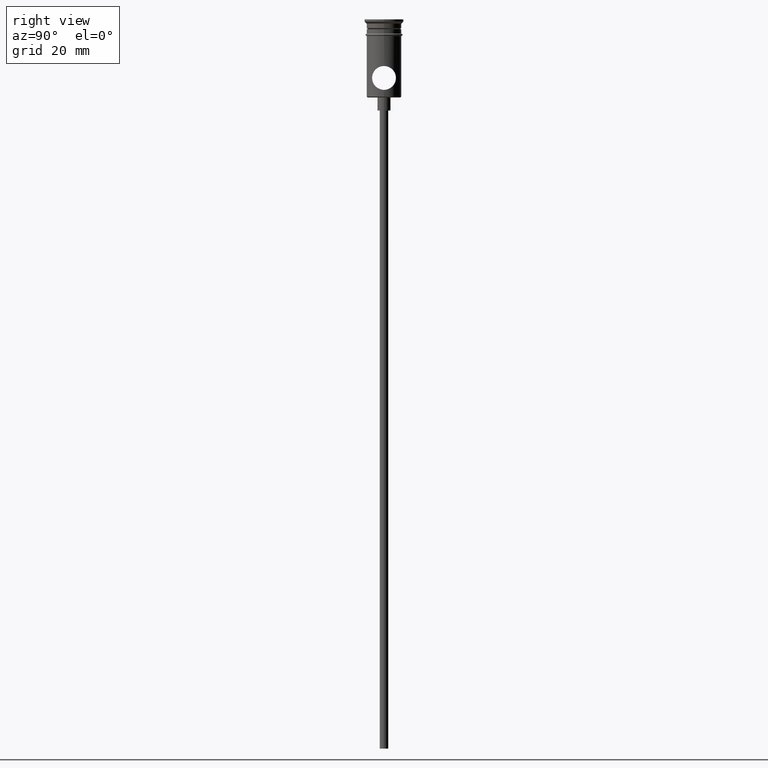
[diagram: clean part render]
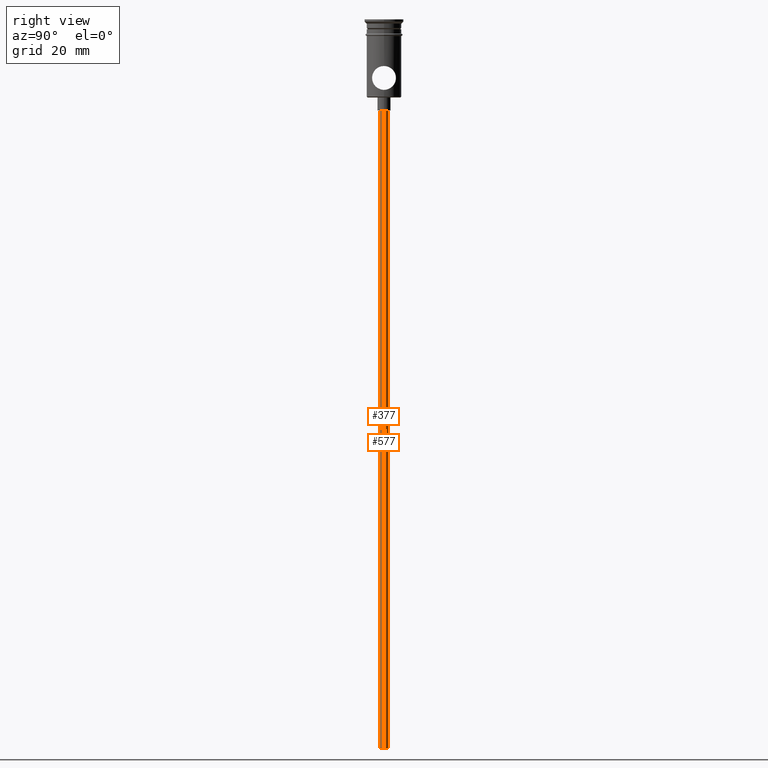
[diagram: same view with one multi-face feature highlighted, each face labeled with its STEP entity id]
A machine part, right view. The highlighted faces form ONE feature: a constant-radius fillet chain: 2 tangent blend faces with common blend radius 1 mm. The faces share edges in the B-rep.
Their STEP definitions:
[1] entity #377 (Cylinder):
#33 = EDGE_CURVE ( 'NONE', #778, #1228, #64, .T. ) ;
#52 = DIRECTION ( 'NONE',  ( -0.000000000000000000, -0.000000000000000000, 1.000000000000000000 ) ) ;
#54 = CARTESIAN_POINT ( 'NONE',  ( -0.9999999999999997780, 1.224646799147352961E-16, -20.99999999999999645 ) ) ;
#64 = CIRCLE ( 'NONE', #433, 0.9999999999999997780 ) ;
#90 = DIRECTION ( 'NONE',  ( 0.000000000000000000, 0.000000000000000000, -1.000000000000000000 ) ) ;
#150 = LINE ( 'NONE', #1379, #688 ) ;
#235 = AXIS2_PLACEMENT_3D ( 'NONE', #495, #385, #736 ) ;
#355 = ORIENTED_EDGE ( 'NONE', *, *, #715, .T. ) ;
#377 = ADVANCED_FACE ( 'NONE', ( #1258 ), #624, .T. ) ;
#378 = DIRECTION ( 'NONE',  ( -1.000000000000000000, 0.000000000000000000, 0.000000000000000000 ) ) ;
#385 = DIRECTION ( 'NONE',  ( -0.000000000000000000, -0.000000000000000000, 1.000000000000000000 ) ) ;
#428 = EDGE_CURVE ( 'NONE', #778, #1214, #1290, .T. ) ;
#433 = AXIS2_PLACEMENT_3D ( 'NONE', #516, #90, #1070 ) ;
#495 = CARTESIAN_POINT ( 'NONE',  ( 0.000000000000000000, 0.000000000000000000, -167.9999999999999716 ) ) ;
#496 = CARTESIAN_POINT ( 'NONE',  ( -0.9999999999999997780, 1.224646799147352961E-16, -167.9999999999999716 ) ) ;
#516 = CARTESIAN_POINT ( 'NONE',  ( 0.000000000000000000, 0.000000000000000000, -167.9999999999999716 ) ) ;
#526 = VECTOR ( 'NONE', #548, 1000.000000000000000 ) ;
#548 = DIRECTION ( 'NONE',  ( -0.000000000000000000, -0.000000000000000000, 1.000000000000000000 ) ) ;
#572 = CIRCLE ( 'NONE', #1373, 0.9999999999999997780 ) ;
#599 = EDGE_LOOP ( 'NONE', ( #1252, #1363, #934, #355 ) ) ;
#624 = CYLINDRICAL_SURFACE ( 'NONE', #235, 0.9999999999999997780 ) ;
#673 = EDGE_CURVE ( 'NONE', #1228, #994, #150, .T. ) ;
#688 = VECTOR ( 'NONE', #52, 1000.000000000000000 ) ;
#715 = EDGE_CURVE ( 'NONE', #1214, #994, #572, .T. ) ;
#736 = DIRECTION ( 'NONE',  ( 1.000000000000000000, 0.000000000000000000, 0.000000000000000000 ) ) ;
#778 = VERTEX_POINT ( 'NONE', #1406 ) ;
#924 = CARTESIAN_POINT ( 'NONE',  ( 0.000000000000000000, 0.000000000000000000, -20.99999999999999645 ) ) ;
#934 = ORIENTED_EDGE ( 'NONE', *, *, #428, .T. ) ;
#994 = VERTEX_POINT ( 'NONE', #54 ) ;
#1070 = DIRECTION ( 'NONE',  ( -1.000000000000000000, 0.000000000000000000, 0.000000000000000000 ) ) ;
#1214 = VERTEX_POINT ( 'NONE', #1267 ) ;
#1228 = VERTEX_POINT ( 'NONE', #496 ) ;
#1252 = ORIENTED_EDGE ( 'NONE', *, *, #673, .F. ) ;
#1258 = FACE_OUTER_BOUND ( 'NONE', #599, .T. ) ;
#1267 = CARTESIAN_POINT ( 'NONE',  ( 0.9999999999999997780, 0.000000000000000000, -20.99999999999999645 ) ) ;
#1290 = LINE ( 'NONE', #1308, #526 ) ;
#1308 = CARTESIAN_POINT ( 'NONE',  ( 0.9999999999999997780, 0.000000000000000000, -167.9999999999999716 ) ) ;
#1354 = DIRECTION ( 'NONE',  ( 0.000000000000000000, 0.000000000000000000, -1.000000000000000000 ) ) ;
#1363 = ORIENTED_EDGE ( 'NONE', *, *, #33, .F. ) ;
#1373 = AXIS2_PLACEMENT_3D ( 'NONE', #924, #1354, #378 ) ;
#1379 = CARTESIAN_POINT ( 'NONE',  ( -0.9999999999999997780, 1.224646799147352961E-16, -167.9999999999999716 ) ) ;
#1406 = CARTESIAN_POINT ( 'NONE',  ( 0.9999999999999997780, 0.000000000000000000, -167.9999999999999716 ) ) ;
[2] entity #577 (Cylinder):
#52 = DIRECTION ( 'NONE',  ( -0.000000000000000000, -0.000000000000000000, 1.000000000000000000 ) ) ;
#54 = CARTESIAN_POINT ( 'NONE',  ( -0.9999999999999997780, 1.224646799147352961E-16, -20.99999999999999645 ) ) ;
#71 = EDGE_CURVE ( 'NONE', #1228, #778, #1030, .T. ) ;
#130 = CARTESIAN_POINT ( 'NONE',  ( 0.000000000000000000, 0.000000000000000000, -167.9999999999999716 ) ) ;
#150 = LINE ( 'NONE', #1379, #688 ) ;
#253 = CYLINDRICAL_SURFACE ( 'NONE', #528, 0.9999999999999997780 ) ;
#254 = DIRECTION ( 'NONE',  ( 0.000000000000000000, 0.000000000000000000, -1.000000000000000000 ) ) ;
#310 = EDGE_CURVE ( 'NONE', #994, #1214, #498, .T. ) ;
#325 = EDGE_LOOP ( 'NONE', ( #598, #471, #1017, #477 ) ) ;
#397 = DIRECTION ( 'NONE',  ( -1.000000000000000000, 0.000000000000000000, 0.000000000000000000 ) ) ;
#428 = EDGE_CURVE ( 'NONE', #778, #1214, #1290, .T. ) ;
#471 = ORIENTED_EDGE ( 'NONE', *, *, #673, .T. ) ;
#477 = ORIENTED_EDGE ( 'NONE', *, *, #428, .F. ) ;
#496 = CARTESIAN_POINT ( 'NONE',  ( -0.9999999999999997780, 1.224646799147352961E-16, -167.9999999999999716 ) ) ;
#498 = CIRCLE ( 'NONE', #589, 0.9999999999999997780 ) ;
#526 = VECTOR ( 'NONE', #548, 1000.000000000000000 ) ;
#528 = AXIS2_PLACEMENT_3D ( 'NONE', #130, #792, #901 ) ;
#548 = DIRECTION ( 'NONE',  ( -0.000000000000000000, -0.000000000000000000, 1.000000000000000000 ) ) ;
#577 = ADVANCED_FACE ( 'NONE', ( #751 ), #253, .T. ) ;
#589 = AXIS2_PLACEMENT_3D ( 'NONE', #596, #254, #1117 ) ;
#596 = CARTESIAN_POINT ( 'NONE',  ( 0.000000000000000000, 0.000000000000000000, -20.99999999999999645 ) ) ;
#598 = ORIENTED_EDGE ( 'NONE', *, *, #71, .F. ) ;
#673 = EDGE_CURVE ( 'NONE', #1228, #994, #150, .T. ) ;
#688 = VECTOR ( 'NONE', #52, 1000.000000000000000 ) ;
#751 = FACE_OUTER_BOUND ( 'NONE', #325, .T. ) ;
#778 = VERTEX_POINT ( 'NONE', #1406 ) ;
#792 = DIRECTION ( 'NONE',  ( -0.000000000000000000, -0.000000000000000000, 1.000000000000000000 ) ) ;
#839 = CARTESIAN_POINT ( 'NONE',  ( 0.000000000000000000, 0.000000000000000000, -167.9999999999999716 ) ) ;
#901 = DIRECTION ( 'NONE',  ( 1.000000000000000000, 0.000000000000000000, 0.000000000000000000 ) ) ;
#994 = VERTEX_POINT ( 'NONE', #54 ) ;
#1017 = ORIENTED_EDGE ( 'NONE', *, *, #310, .T. ) ;
#1030 = CIRCLE ( 'NONE', #1212, 0.9999999999999997780 ) ;
#1117 = DIRECTION ( 'NONE',  ( -1.000000000000000000, 0.000000000000000000, 0.000000000000000000 ) ) ;
#1212 = AXIS2_PLACEMENT_3D ( 'NONE', #839, #1378, #397 ) ;
#1214 = VERTEX_POINT ( 'NONE', #1267 ) ;
#1228 = VERTEX_POINT ( 'NONE', #496 ) ;
#1267 = CARTESIAN_POINT ( 'NONE',  ( 0.9999999999999997780, 0.000000000000000000, -20.99999999999999645 ) ) ;
#1290 = LINE ( 'NONE', #1308, #526 ) ;
#1308 = CARTESIAN_POINT ( 'NONE',  ( 0.9999999999999997780, 0.000000000000000000, -167.9999999999999716 ) ) ;
#1378 = DIRECTION ( 'NONE',  ( 0.000000000000000000, 0.000000000000000000, -1.000000000000000000 ) ) ;
#1379 = CARTESIAN_POINT ( 'NONE',  ( -0.9999999999999997780, 1.224646799147352961E-16, -167.9999999999999716 ) ) ;
#1406 = CARTESIAN_POINT ( 'NONE',  ( 0.9999999999999997780, 0.000000000000000000, -167.9999999999999716 ) ) ;